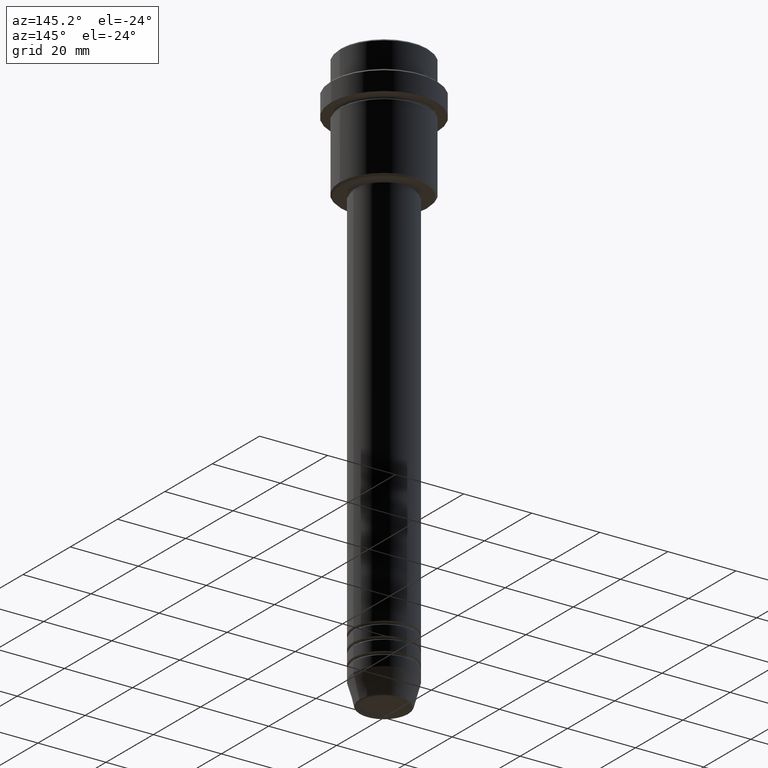
[diagram: clean part render]
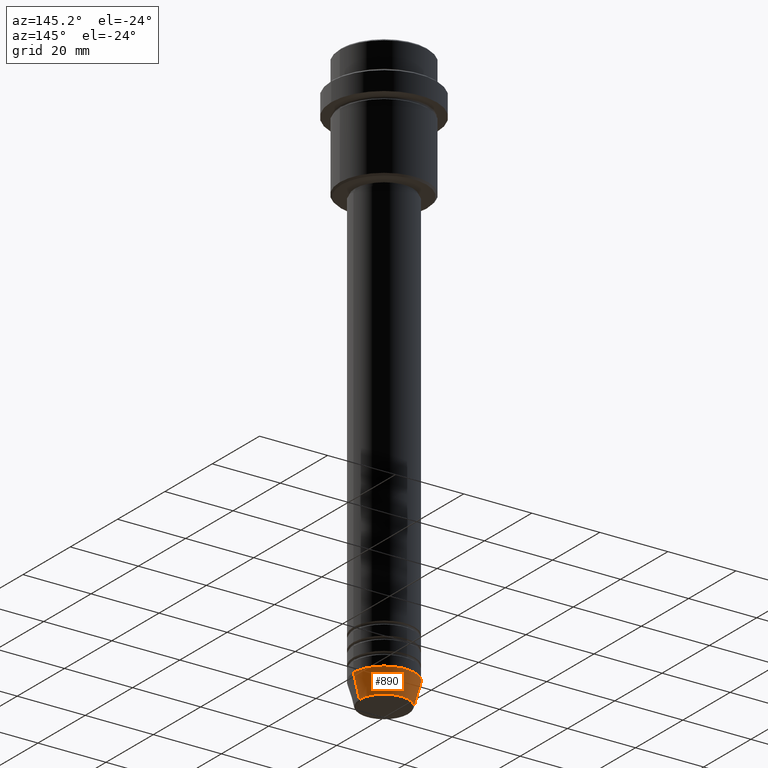
[diagram: same view with one face highlighted and labeled with its STEP entity id]
A machine part, auxiliary view. The second image highlights one B-rep face of the part: STEP entity #890.
In plain terms, the highlighted conical surface has half-angle 15 deg.
Its self-contained STEP definition (entity closure, byte-faithful):
#28 = AXIS2_PLACEMENT_3D ( 'NONE', #1004, #1236, #1247 ) ;
#77 = VERTEX_POINT ( 'NONE', #794 ) ;
#86 = LINE ( 'NONE', #825, #667 ) ;
#199 = CARTESIAN_POINT ( 'NONE',  ( 9.000000000000000000, 0.000000000000000000, -164.0000000000000000 ) ) ;
#234 = ORIENTED_EDGE ( 'NONE', *, *, #1228, .F. ) ;
#316 = VERTEX_POINT ( 'NONE', #737 ) ;
#378 = DIRECTION ( 'NONE',  ( -0.000000000000000000, -0.000000000000000000, 1.000000000000000000 ) ) ;
#422 = DIRECTION ( 'NONE',  ( 1.000000000000000000, 0.000000000000000000, 0.000000000000000000 ) ) ;
#518 = EDGE_CURVE ( 'NONE', #1008, #316, #1230, .T. ) ;
#533 = CARTESIAN_POINT ( 'NONE',  ( 0.000000000000000000, 0.000000000000000000, -164.0000000000000000 ) ) ;
#547 = ORIENTED_EDGE ( 'NONE', *, *, #941, .T. ) ;
#662 = ORIENTED_EDGE ( 'NONE', *, *, #702, .F. ) ;
#667 = VECTOR ( 'NONE', #1365, 1000.000000000000000 ) ;
#698 = DIRECTION ( 'NONE',  ( 1.000000000000000000, 0.000000000000000000, 0.000000000000000000 ) ) ;
#702 = EDGE_CURVE ( 'NONE', #77, #1290, #86, .T. ) ;
#737 = CARTESIAN_POINT ( 'NONE',  ( -9.000000000000000000, 1.102182119232617714E-15, -164.0000000000000000 ) ) ;
#794 = CARTESIAN_POINT ( 'NONE',  ( 7.223655072137193045, 0.000000000000000000, -170.6294095225512422 ) ) ;
#818 = CARTESIAN_POINT ( 'NONE',  ( -9.000000000000000000, 1.102182119232617714E-15, -164.0000000000000000 ) ) ;
#825 = CARTESIAN_POINT ( 'NONE',  ( 9.000000000000000000, 0.000000000000000000, -164.0000000000000000 ) ) ;
#890 = ADVANCED_FACE ( 'NONE', ( #1022 ), #1150, .T. ) ;
#894 = CARTESIAN_POINT ( 'NONE',  ( 0.000000000000000000, 0.000000000000000000, -164.0000000000000000 ) ) ;
#925 = VECTOR ( 'NONE', #1249, 1000.000000000000000 ) ;
#941 = EDGE_CURVE ( 'NONE', #77, #1008, #1402, .T. ) ;
#975 = DIRECTION ( 'NONE',  ( -0.000000000000000000, -0.000000000000000000, 1.000000000000000000 ) ) ;
#989 = ORIENTED_EDGE ( 'NONE', *, *, #518, .T. ) ;
#1004 = CARTESIAN_POINT ( 'NONE',  ( 0.000000000000000000, 0.000000000000000000, -170.6294095225512422 ) ) ;
#1008 = VERTEX_POINT ( 'NONE', #1160 ) ;
#1022 = FACE_OUTER_BOUND ( 'NONE', #1322, .T. ) ;
#1150 = CONICAL_SURFACE ( 'NONE', #1242, 9.000000000000000000, 0.2617993877991510177 ) ;
#1160 = CARTESIAN_POINT ( 'NONE',  ( -7.223655072137193045, 9.934123627281765110E-16, -170.6294095225512422 ) ) ;
#1216 = CIRCLE ( 'NONE', #1383, 9.000000000000000000 ) ;
#1228 = EDGE_CURVE ( 'NONE', #1290, #316, #1216, .T. ) ;
#1230 = LINE ( 'NONE', #818, #925 ) ;
#1236 = DIRECTION ( 'NONE',  ( -0.000000000000000000, -0.000000000000000000, 1.000000000000000000 ) ) ;
#1242 = AXIS2_PLACEMENT_3D ( 'NONE', #894, #378, #698 ) ;
#1247 = DIRECTION ( 'NONE',  ( 1.000000000000000000, 0.000000000000000000, 0.000000000000000000 ) ) ;
#1249 = DIRECTION ( 'NONE',  ( -0.2588190451025222938, 3.169619151431783430E-17, 0.9659258262890678681 ) ) ;
#1290 = VERTEX_POINT ( 'NONE', #199 ) ;
#1322 = EDGE_LOOP ( 'NONE', ( #547, #989, #234, #662 ) ) ;
#1365 = DIRECTION ( 'NONE',  ( 0.2588190451025222938, 0.000000000000000000, 0.9659258262890678681 ) ) ;
#1383 = AXIS2_PLACEMENT_3D ( 'NONE', #533, #975, #422 ) ;
#1402 = CIRCLE ( 'NONE', #28, 7.223655072137193045 ) ;